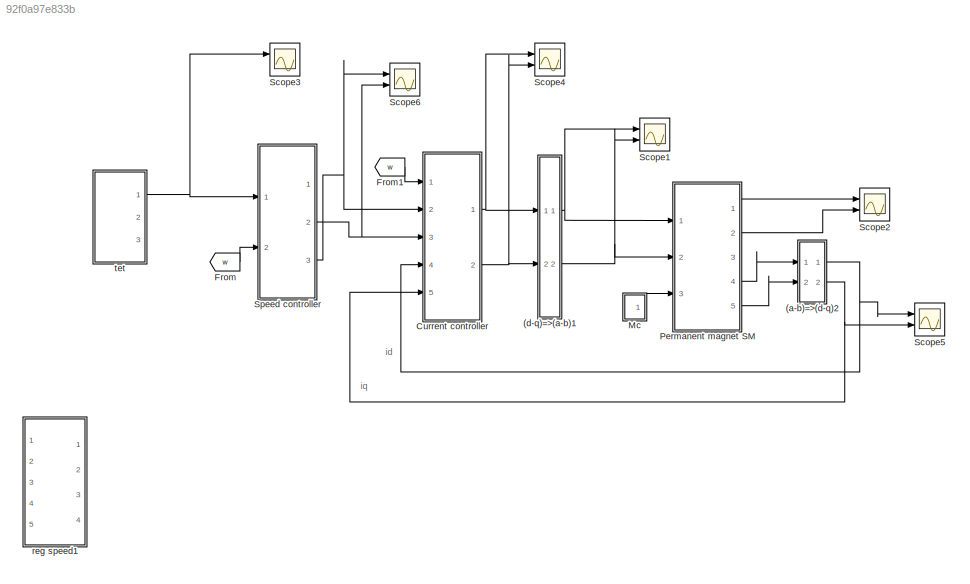
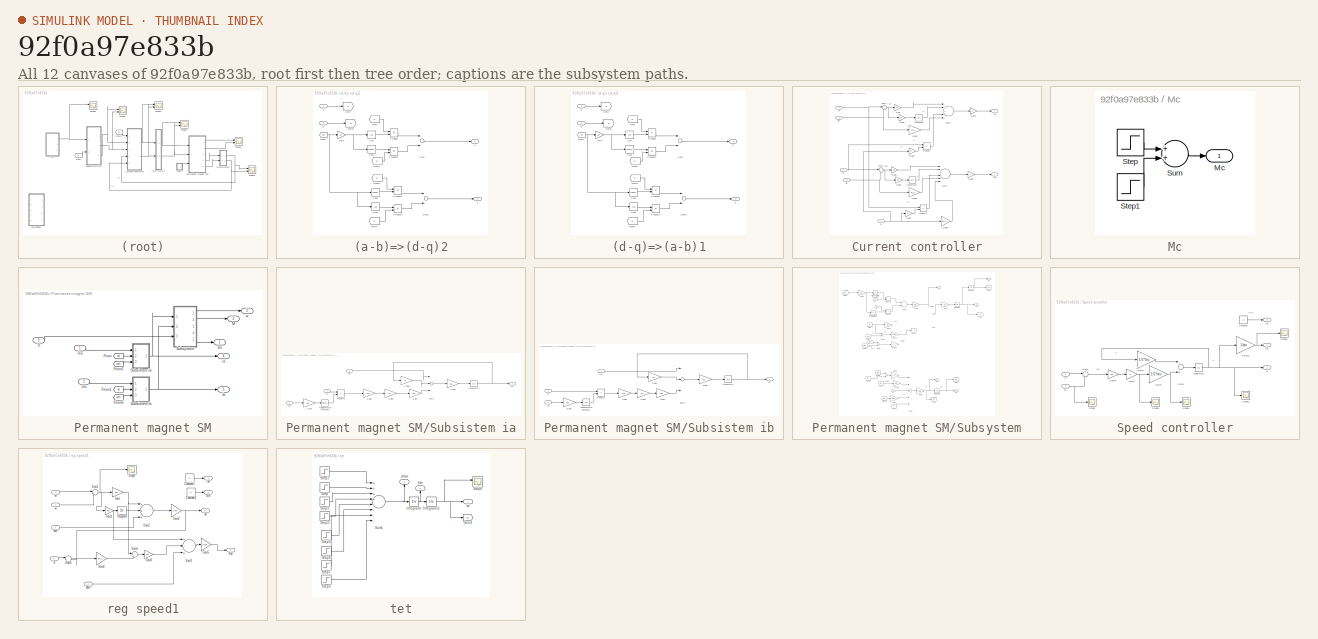
[diagram: thumbnail index - all 12 canvases of the model, root first then tree order]
MODEL slx_92f0a97e833b
KIND model
CONFIG AbsTol = 1e-7
CONFIG FixedStep = auto
CONFIG MaxStep = auto
CONFIG MinStep = auto
CONFIG RelTol = 1e-7
CONFIG SampleTimeConstraint = Unconstrained
CONFIG Solver = ode45
CONFIG SolverMode = Auto
CONFIG SolverName = ode45
CONFIG StartTime = 0.0
CONFIG StopTime = 5
BLOCK [SubSystem] (a-b)=>(d-q)2
  Ports = [2, 2]
  RequestExecContextInheritance = off
  Variant = off
BLOCK [Trigonometry] (a-b)=>(d-q)2/Cos
  Operator = cos
  Ports = [1, 1]
BLOCK [Trigonometry] (a-b)=>(d-q)2/Cos1
  Ports = [1, 1]
BLOCK [Trigonometry] (a-b)=>(d-q)2/Cos2
  Ports = [1, 1]
BLOCK [Trigonometry] (a-b)=>(d-q)2/Cos3
  Operator = cos
  Ports = [1, 1]
BLOCK [From] (a-b)=>(d-q)2/From
  GotoTag = a
BLOCK [From] (a-b)=>(d-q)2/From1
  CloseFcn = tagdialog Close
  GotoTag = tet
  TagVisibility = global
BLOCK [From] (a-b)=>(d-q)2/From2
  GotoTag = b
BLOCK [From] (a-b)=>(d-q)2/From3
  GotoTag = a
BLOCK [From] (a-b)=>(d-q)2/From4
  GotoTag = b
BLOCK [Gain] (a-b)=>(d-q)2/Gain
  Gain = pn
  OutDataTypeStr = Inherit: Inherit via internal rule
  ParamDataTypeStr = Inherit: Inherit via internal rule
  SaturateOnIntegerOverflow = off
BLOCK [Goto] (a-b)=>(d-q)2/Goto
  GotoTag = a
BLOCK [Goto] (a-b)=>(d-q)2/Goto1
  GotoTag = b
BLOCK [Product] (a-b)=>(d-q)2/Product
  InputSameDT = off
  OutDataTypeStr = Inherit: Inherit via internal rule
  Ports = [2, 1]
  RndMeth = Floor
  SaturateOnIntegerOverflow = off
BLOCK [Product] (a-b)=>(d-q)2/Product1
  InputSameDT = off
  OutDataTypeStr = Inherit: Inherit via internal rule
  Ports = [2, 1]
  RndMeth = Floor
  SaturateOnIntegerOverflow = off
BLOCK [Product] (a-b)=>(d-q)2/Product2
  InputSameDT = off
  OutDataTypeStr = Inherit: Inherit via internal rule
  Ports = [2, 1]
  RndMeth = Floor
  SaturateOnIntegerOverflow = off
BLOCK [Product] (a-b)=>(d-q)2/Product3
  InputSameDT = off
  OutDataTypeStr = Inherit: Inherit via internal rule
  Ports = [2, 1]
  RndMeth = Floor
  SaturateOnIntegerOverflow = off
BLOCK [Sum] (a-b)=>(d-q)2/Sum
  InputSameDT = off
  OutDataTypeStr = Inherit: Inherit via internal rule
  Ports = [2, 1]
  SaturateOnIntegerOverflow = off
BLOCK [Sum] (a-b)=>(d-q)2/Sum1
  InputSameDT = off
  Inputs = -+
  OutDataTypeStr = Inherit: Inherit via internal rule
  Ports = [2, 1]
  SaturateOnIntegerOverflow = off
BLOCK [Inport] (a-b)=>(d-q)2/a
  IconDisplay = Port number
BLOCK [Inport] (a-b)=>(d-q)2/b 
  IconDisplay = Port number
  Port = 2
BLOCK [Outport] (a-b)=>(d-q)2/d
  IconDisplay = Port number
BLOCK [Outport] (a-b)=>(d-q)2/q
  IconDisplay = Port number
  Port = 2
BLOCK [SubSystem] (d-q)=>(a-b)1
  Ports = [2, 2]
  RequestExecContextInheritance = off
  Variant = off
BLOCK [Trigonometry] (d-q)=>(a-b)1/Cos
  Operator = cos
  Ports = [1, 1]
BLOCK [Trigonometry] (d-q)=>(a-b)1/Cos1
  Ports = [1, 1]
BLOCK [Trigonometry] (d-q)=>(a-b)1/Cos2
  Ports = [1, 1]
BLOCK [Trigonometry] (d-q)=>(a-b)1/Cos3
  Operator = cos
  Ports = [1, 1]
BLOCK [From] (d-q)=>(a-b)1/From
  GotoTag = d
BLOCK [From] (d-q)=>(a-b)1/From1
  CloseFcn = tagdialog Close
  GotoTag = tet
  TagVisibility = global
BLOCK [From] (d-q)=>(a-b)1/From2
  GotoTag = q
BLOCK [From] (d-q)=>(a-b)1/From3
  GotoTag = d
BLOCK [From] (d-q)=>(a-b)1/From4
  GotoTag = q
BLOCK [Gain] (d-q)=>(a-b)1/Gain
  Gain = pn
  OutDataTypeStr = Inherit: Inherit via internal rule
  ParamDataTypeStr = Inherit: Inherit via internal rule
  SaturateOnIntegerOverflow = off
BLOCK [Goto] (d-q)=>(a-b)1/Goto
  GotoTag = d
BLOCK [Goto] (d-q)=>(a-b)1/Goto1
  GotoTag = q
BLOCK [Product] (d-q)=>(a-b)1/Product
  InputSameDT = off
  OutDataTypeStr = Inherit: Inherit via internal rule
  Ports = [2, 1]
  RndMeth = Floor
  SaturateOnIntegerOverflow = off
BLOCK [Product] (d-q)=>(a-b)1/Product1
  InputSameDT = off
  OutDataTypeStr = Inherit: Inherit via internal rule
  Ports = [2, 1]
  RndMeth = Floor
  SaturateOnIntegerOverflow = off
BLOCK [Product] (d-q)=>(a-b)1/Product2
  InputSameDT = off
  OutDataTypeStr = Inherit: Inherit via internal rule
  Ports = [2, 1]
  RndMeth = Floor
  SaturateOnIntegerOverflow = off
BLOCK [Product] (d-q)=>(a-b)1/Product3
  InputSameDT = off
  OutDataTypeStr = Inherit: Inherit via internal rule
  Ports = [2, 1]
  RndMeth = Floor
  SaturateOnIntegerOverflow = off
BLOCK [Sum] (d-q)=>(a-b)1/Sum
  InputSameDT = off
  Inputs = +-
  OutDataTypeStr = Inherit: Inherit via internal rule
  Ports = [2, 1]
  SaturateOnIntegerOverflow = off
BLOCK [Sum] (d-q)=>(a-b)1/Sum1
  InputSameDT = off
  OutDataTypeStr = Inherit: Inherit via internal rule
  Ports = [2, 1]
  SaturateOnIntegerOverflow = off
BLOCK [Outport] (d-q)=>(a-b)1/a
  IconDisplay = Port number
BLOCK [Outport] (d-q)=>(a-b)1/b
  IconDisplay = Port number
  Port = 2
BLOCK [Inport] (d-q)=>(a-b)1/d
  IconDisplay = Port number
BLOCK [Inport] (d-q)=>(a-b)1/q 
  IconDisplay = Port number
  Port = 2
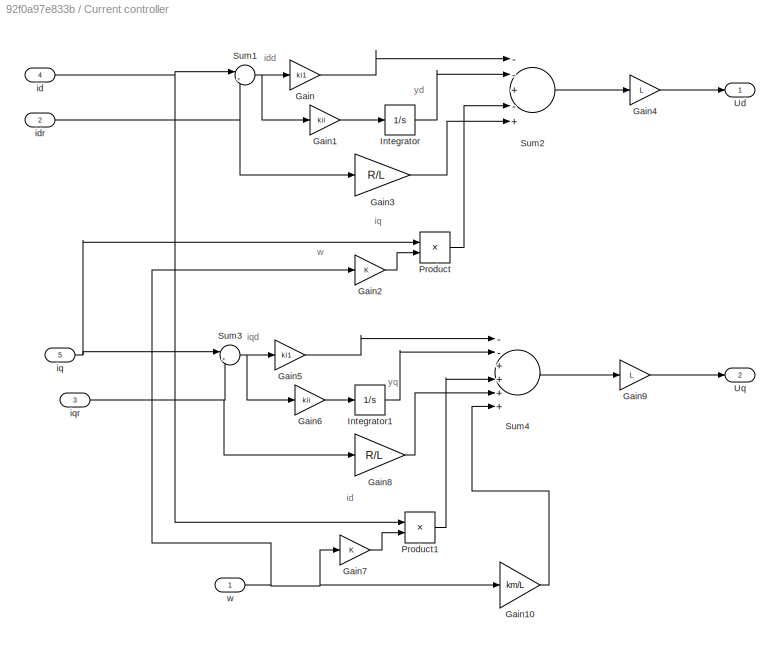
BLOCK [SubSystem] Current controller
  Ports = [5, 2]
  RequestExecContextInheritance = off
  Variant = off
BLOCK [Gain] Current controller/Gain
  Gain = ki1
  OutDataTypeStr = Inherit: Inherit via internal rule
  ParamDataTypeStr = Inherit: Inherit via internal rule
  SaturateOnIntegerOverflow = off
BLOCK [Gain] Current controller/Gain1
  Gain = kii
  OutDataTypeStr = Inherit: Inherit via internal rule
  ParamDataTypeStr = Inherit: Inherit via internal rule
  SaturateOnIntegerOverflow = off
BLOCK [Gain] Current controller/Gain10
  Gain = km/L
  OutDataTypeStr = Inherit: Inherit via internal rule
  ParamDataTypeStr = Inherit: Inherit via internal rule
  SaturateOnIntegerOverflow = off
BLOCK [Gain] Current controller/Gain2
  OutDataTypeStr = Inherit: Inherit via internal rule
  ParamDataTypeStr = Inherit: Inherit via internal rule
  SaturateOnIntegerOverflow = off
BLOCK [Gain] Current controller/Gain3
  Gain = R/L
  OutDataTypeStr = Inherit: Inherit via internal rule
  ParamDataTypeStr = Inherit: Inherit via internal rule
  SaturateOnIntegerOverflow = off
BLOCK [Gain] Current controller/Gain4
  Gain = L
  OutDataTypeStr = Inherit: Inherit via internal rule
  ParamDataTypeStr = Inherit: Inherit via internal rule
  SaturateOnIntegerOverflow = off
BLOCK [Gain] Current controller/Gain5
  Gain = ki1
  OutDataTypeStr = Inherit: Inherit via internal rule
  ParamDataTypeStr = Inherit: Inherit via internal rule
  SaturateOnIntegerOverflow = off
BLOCK [Gain] Current controller/Gain6
  Gain = kii
  OutDataTypeStr = Inherit: Inherit via internal rule
  ParamDataTypeStr = Inherit: Inherit via internal rule
  SaturateOnIntegerOverflow = off
BLOCK [Gain] Current controller/Gain7
  OutDataTypeStr = Inherit: Inherit via internal rule
  ParamDataTypeStr = Inherit: Inherit via internal rule
  SaturateOnIntegerOverflow = off
BLOCK [Gain] Current controller/Gain8
  Gain = R/L
  OutDataTypeStr = Inherit: Inherit via internal rule
  ParamDataTypeStr = Inherit: Inherit via internal rule
  SaturateOnIntegerOverflow = off
BLOCK [Gain] Current controller/Gain9
  Gain = L
  OutDataTypeStr = Inherit: Inherit via internal rule
  ParamDataTypeStr = Inherit: Inherit via internal rule
  SaturateOnIntegerOverflow = off
BLOCK [Integrator] Current controller/Integrator
  Ports = [1, 1]
BLOCK [Integrator] Current controller/Integrator1
  Ports = [1, 1]
BLOCK [Product] Current controller/Product
  InputSameDT = off
  OutDataTypeStr = Inherit: Inherit via internal rule
  Ports = [2, 1]
  RndMeth = Floor
  SaturateOnIntegerOverflow = off
BLOCK [Product] Current controller/Product1
  InputSameDT = off
  OutDataTypeStr = Inherit: Inherit via internal rule
  Ports = [2, 1]
  RndMeth = Floor
  SaturateOnIntegerOverflow = off
BLOCK [Sum] Current controller/Sum1
  IconShape = round
  InputSameDT = off
  Inputs = |+-
  OutDataTypeStr = Inherit: Inherit via internal rule
  Ports = [2, 1]
  SaturateOnIntegerOverflow = off
BLOCK [Sum] Current controller/Sum2
  InputSameDT = off
  Inputs = --+-+
  OutDataTypeStr = Inherit: Inherit via internal rule
  Ports = [5, 1]
  SaturateOnIntegerOverflow = off
BLOCK [Sum] Current controller/Sum3
  IconShape = round
  InputSameDT = off
  Inputs = |+-
  OutDataTypeStr = Inherit: Inherit via internal rule
  Ports = [2, 1]
  SaturateOnIntegerOverflow = off
BLOCK [Sum] Current controller/Sum4
  InputSameDT = off
  Inputs = --++++
  OutDataTypeStr = Inherit: Inherit via internal rule
  Ports = [6, 1]
  SaturateOnIntegerOverflow = off
BLOCK [Outport] Current controller/Ud
  IconDisplay = Port number
BLOCK [Outport] Current controller/Uq
  IconDisplay = Port number
  Port = 2
BLOCK [Inport] Current controller/id
  IconDisplay = Port number
  Port = 4
BLOCK [Inport] Current controller/idr
  IconDisplay = Port number
  Port = 2
BLOCK [Inport] Current controller/iq
  IconDisplay = Port number
  Port = 5
BLOCK [Inport] Current controller/iqr
  IconDisplay = Port number
  Port = 3
BLOCK [Inport] Current controller/w
  IconDisplay = Port number
BLOCK [From] From
  GotoTag = w
  TagVisibility = global
BLOCK [From] From1
  GotoTag = w
  TagVisibility = global
BLOCK [SubSystem] Mc
  Ports = [0, 1]
  RequestExecContextInheritance = off
  Variant = off
BLOCK [Outport] Mc/Mc
  IconDisplay = Port number
BLOCK [Step] Mc/Step
  After = Mc
  Time = te
BLOCK [Step] Mc/Step1
  After = -Mc
  Time = td
BLOCK [Sum] Mc/Sum
  Ports = [2, 1]
BLOCK [SubSystem] Permanent magnet SM
  Ports = [3, 5]
  RequestExecContextInheritance = off
  Variant = off
BLOCK [From] Permanent magnet SM/From
  GotoTag = w
  TagVisibility = global
BLOCK [From] Permanent magnet SM/From1
  GotoTag = w
  TagVisibility = global
BLOCK [From] Permanent magnet SM/From5
  GotoTag = tet
  TagVisibility = global
BLOCK [From] Permanent magnet SM/From6
  GotoTag = tet
  TagVisibility = global
BLOCK [Outport] Permanent magnet SM/M
  IconDisplay = Port number
  Port = 3
BLOCK [SubSystem] Permanent magnet SM/Subsistem ia
  Ports = [3, 1]
  RequestExecContextInheritance = off
  Variant = off
BLOCK [Gain] Permanent magnet SM/Subsistem ia/Gain1
  Gain = pn
BLOCK [Gain] Permanent magnet SM/Subsistem ia/Gain2
  Gain = Lm
BLOCK [Gain] Permanent magnet SM/Subsistem ia/Gain3
  Gain = R
BLOCK [Gain] Permanent magnet SM/Subsistem ia/Gain4
  Gain = pn
BLOCK [Gain] Permanent magnet SM/Subsistem ia/Gain5
  Gain = 1/L
BLOCK [Gain] Permanent magnet SM/Subsistem ia/Gain6
  Gain = iff
BLOCK [Integrator] Permanent magnet SM/Subsistem ia/Integrator1
  Ports = [1, 1]
BLOCK [Product] Permanent magnet SM/Subsistem ia/Product3
  Ports = [2, 1]
BLOCK [Sum] Permanent magnet SM/Subsistem ia/Sum1
  InputSameDT = off
  Inputs = |+-+
  OutDataTypeStr = Inherit: Inherit via internal rule
  Ports = [3, 1]
  SaturateOnIntegerOverflow = off
BLOCK [Trigonometry] Permanent magnet SM/Subsistem ia/Trigonometric Function2
  Ports = [1, 1]
BLOCK [Inport] Permanent magnet SM/Subsistem ia/Ua
  IconDisplay = Port number
BLOCK [Outport] Permanent magnet SM/Subsistem ia/ia
  IconDisplay = Port number
BLOCK [Inport] Permanent magnet SM/Subsistem ia/tet
  IconDisplay = Port number
  Port = 3
BLOCK [Inport] Permanent magnet SM/Subsistem ia/w
  IconDisplay = Port number
  Port = 2
BLOCK [SubSystem] Permanent magnet SM/Subsistem ib
  Ports = [3, 1]
  RequestExecContextInheritance = off
  Variant = off
BLOCK [Gain] Permanent magnet SM/Subsistem ib/Gain1
  Gain = pn
BLOCK [Gain] Permanent magnet SM/Subsistem ib/Gain2
  Gain = Lm
BLOCK [Gain] Permanent magnet SM/Subsistem ib/Gain3
  Gain = R
BLOCK [Gain] Permanent magnet SM/Subsistem ib/Gain4
  Gain = pn
BLOCK [Gain] Permanent magnet SM/Subsistem ib/Gain5
  Gain = 1/L
BLOCK [Gain] Permanent magnet SM/Subsistem ib/Gain6
  Gain = iff
BLOCK [Integrator] Permanent magnet SM/Subsistem ib/Integrator1
  Ports = [1, 1]
BLOCK [Product] Permanent magnet SM/Subsistem ib/Product3
  Ports = [2, 1]
BLOCK [Sum] Permanent magnet SM/Subsistem ib/Sum1
  InputSameDT = off
  Inputs = |+--
  OutDataTypeStr = Inherit: Inherit via internal rule
  Ports = [3, 1]
  SaturateOnIntegerOverflow = off
BLOCK [Trigonometry] Permanent magnet SM/Subsistem ib/Trigonometric Function2
  Operator = cos
  Ports = [1, 1]
BLOCK [Inport] Permanent magnet SM/Subsistem ib/Ub
  IconDisplay = Port number
BLOCK [Outport] Permanent magnet SM/Subsistem ib/ib
  IconDisplay = Port number
BLOCK [Inport] Permanent magnet SM/Subsistem ib/tet
  IconDisplay = Port number
  Port = 3
BLOCK [Inport] Permanent magnet SM/Subsistem ib/w
  IconDisplay = Port number
  Port = 2
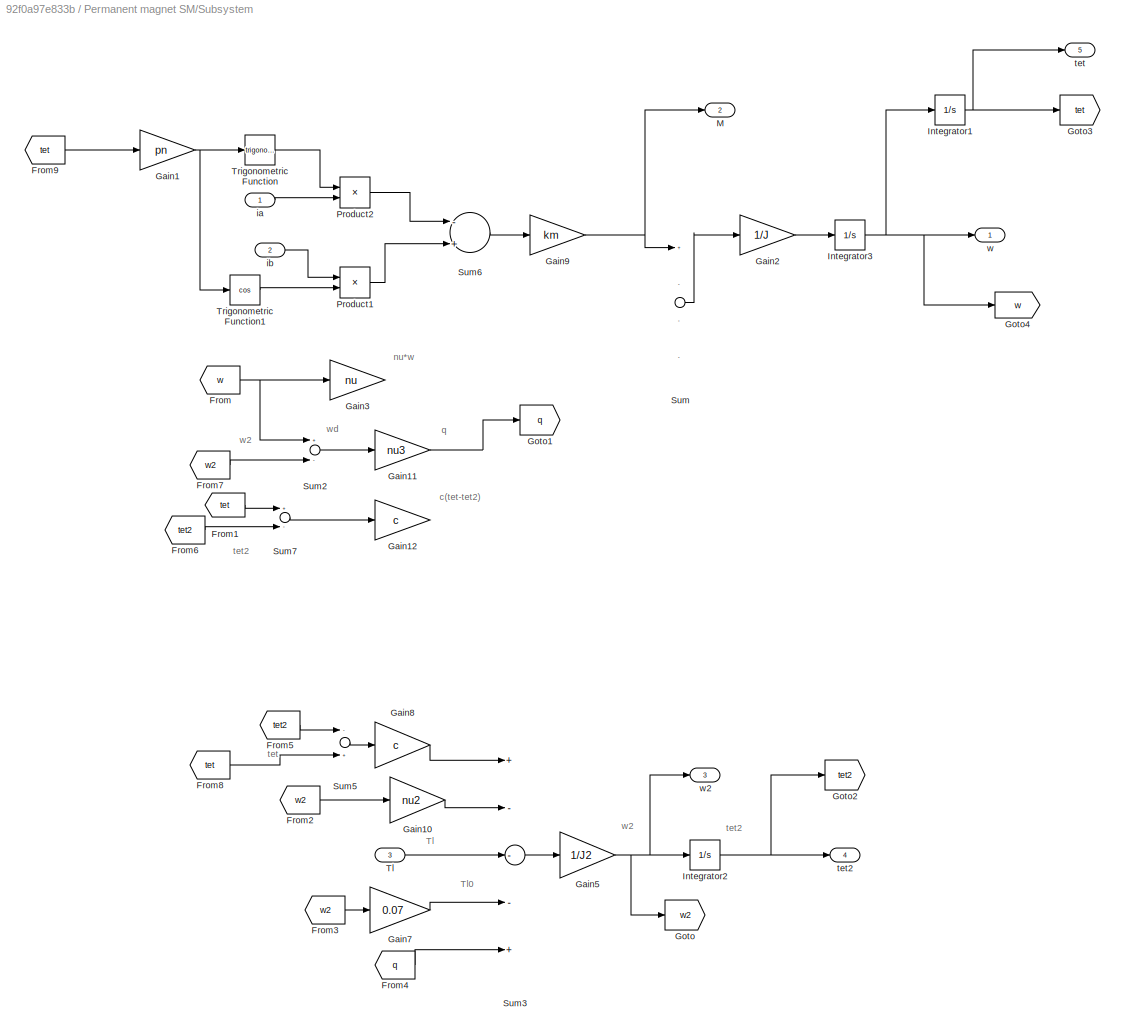
BLOCK [SubSystem] Permanent magnet SM/Subsystem
  Ports = [3, 5]
  RequestExecContextInheritance = off
  Variant = off
BLOCK [From] Permanent magnet SM/Subsystem/From
  GotoTag = w
  TagVisibility = global
BLOCK [From] Permanent magnet SM/Subsystem/From1
  GotoTag = tet
  TagVisibility = global
BLOCK [From] Permanent magnet SM/Subsystem/From2
  GotoTag = w2
BLOCK [From] Permanent magnet SM/Subsystem/From3
  GotoTag = w2
BLOCK [From] Permanent magnet SM/Subsystem/From4
  GotoTag = q
BLOCK [From] Permanent magnet SM/Subsystem/From5
  GotoTag = tet2
BLOCK [From] Permanent magnet SM/Subsystem/From6
  GotoTag = tet2
BLOCK [From] Permanent magnet SM/Subsystem/From7
  GotoTag = w2
BLOCK [From] Permanent magnet SM/Subsystem/From8
  GotoTag = tet
  TagVisibility = global
BLOCK [From] Permanent magnet SM/Subsystem/From9
  GotoTag = tet
  TagVisibility = global
BLOCK [Gain] Permanent magnet SM/Subsystem/Gain1
  Gain = pn
BLOCK [Gain] Permanent magnet SM/Subsystem/Gain10
  Gain = nu2
BLOCK [Gain] Permanent magnet SM/Subsystem/Gain11
  Gain = nu3
BLOCK [Gain] Permanent magnet SM/Subsystem/Gain12
  Gain = c
BLOCK [Gain] Permanent magnet SM/Subsystem/Gain2
  Gain = 1/J
BLOCK [Gain] Permanent magnet SM/Subsystem/Gain3
  Gain = nu
BLOCK [Gain] Permanent magnet SM/Subsystem/Gain5
  Gain = 1/J2
BLOCK [Gain] Permanent magnet SM/Subsystem/Gain7
  Gain = 0.07
BLOCK [Gain] Permanent magnet SM/Subsystem/Gain8
  Gain = c
BLOCK [Gain] Permanent magnet SM/Subsystem/Gain9
  Gain = km
BLOCK [Goto] Permanent magnet SM/Subsystem/Goto
  GotoTag = w2
BLOCK [Goto] Permanent magnet SM/Subsystem/Goto1
  GotoTag = q
BLOCK [Goto] Permanent magnet SM/Subsystem/Goto2
  GotoTag = tet2
BLOCK [Goto] Permanent magnet SM/Subsystem/Goto3
  GotoTag = tet
  TagVisibility = global
BLOCK [Goto] Permanent magnet SM/Subsystem/Goto4
  GotoTag = w
  TagVisibility = global
BLOCK [Integrator] Permanent magnet SM/Subsystem/Integrator1
  Ports = [1, 1]
BLOCK [Integrator] Permanent magnet SM/Subsystem/Integrator2
  Ports = [1, 1]
BLOCK [Integrator] Permanent magnet SM/Subsystem/Integrator3
  Ports = [1, 1]
BLOCK [Outport] Permanent magnet SM/Subsystem/M
  IconDisplay = Port number
  Port = 2
BLOCK [Product] Permanent magnet SM/Subsystem/Product1
  Ports = [2, 1]
BLOCK [Product] Permanent magnet SM/Subsystem/Product2
  Ports = [2, 1]
BLOCK [Sum] Permanent magnet SM/Subsystem/Sum
  InputSameDT = off
  Inputs = +---
  OutDataTypeStr = Inherit: Inherit via internal rule
  Ports = [4, 1]
  SaturateOnIntegerOverflow = off
BLOCK [Sum] Permanent magnet SM/Subsystem/Sum2
  Inputs = +-
  Ports = [2, 1]
BLOCK [Sum] Permanent magnet SM/Subsystem/Sum3
  Inputs = +---+
  Ports = [5, 1]
BLOCK [Sum] Permanent magnet SM/Subsystem/Sum5
  Inputs = -+
  Ports = [2, 1]
BLOCK [Sum] Permanent magnet SM/Subsystem/Sum6
  Inputs = -+
  Ports = [2, 1]
BLOCK [Sum] Permanent magnet SM/Subsystem/Sum7
  Inputs = +-
  Ports = [2, 1]
BLOCK [Inport] Permanent magnet SM/Subsystem/Tl 
  IconDisplay = Port number
  Port = 3
BLOCK [Trigonometry] Permanent magnet SM/Subsystem/Trigonometric Function
  Ports = [1, 1]
BLOCK [Trigonometry] Permanent magnet SM/Subsystem/Trigonometric Function1
  Operator = cos
  Ports = [1, 1]
BLOCK [Inport] Permanent magnet SM/Subsystem/ia
  IconDisplay = Port number
BLOCK [Inport] Permanent magnet SM/Subsystem/ib
  IconDisplay = Port number
  Port = 2
BLOCK [Outport] Permanent magnet SM/Subsystem/tet
  IconDisplay = Port number
  Port = 5
BLOCK [Outport] Permanent magnet SM/Subsystem/tet2
  IconDisplay = Port number
  Port = 4
BLOCK [Outport] Permanent magnet SM/Subsystem/w
  IconDisplay = Port number
BLOCK [Outport] Permanent magnet SM/Subsystem/w2
  IconDisplay = Port number
  Port = 3
BLOCK [Inport] Permanent magnet SM/Tl
  IconDisplay = Port number
  Port = 3
BLOCK [Inport] Permanent magnet SM/Ua
  IconDisplay = Port number
BLOCK [Inport] Permanent magnet SM/Ub
  IconDisplay = Port number
  Port = 2
BLOCK [Outport] Permanent magnet SM/ia
  IconDisplay = Port number
  Port = 4
BLOCK [Outport] Permanent magnet SM/ib
  IconDisplay = Port number
  Port = 5
BLOCK [Outport] Permanent magnet SM/tet
  IconDisplay = Port number
BLOCK [Outport] Permanent magnet SM/w
  IconDisplay = Port number
  Port = 2
BLOCK [Scope] Scope1
  DataFormat = StructureWithTime
  Decimation = 1
  Grid = on
  LimitDataPoints = off
  MaxDataPoints = 5000
  NumInputPorts = 2
  Ports = [2]
  SampleInput = off
  SampleTime = -1
  SaveName = ScopeData3
  SaveToWorkspace = off
  ShowLegends = off
  TickLabels = OneTimeTick
  TimeRange = auto
  YMax = 2418362.07911~5510227.66956
  YMin = -3707390.80003~-8730985.09231
  ZoomMode = on
BLOCK [Scope] Scope2
  DataFormat = StructureWithTime
  Decimation = 1
  Grid = on
  LimitDataPoints = off
  MaxDataPoints = 5000
  NumInputPorts = 2
  Ports = [2]
  SampleInput = off
  SampleTime = -1
  SaveName = ScopeData7
  SaveToWorkspace = off
  ShowLegends = off
  TickLabels = OneTimeTick
  TimeRange = 1.378939277478863
  YMax = 0.92437~25.86397
  YMin = -0.10271~-26.64614
  ZoomMode = on
BLOCK [Scope] Scope3
  DataFormat = StructureWithTime
  Decimation = 1
  Grid = on
  LimitDataPoints = off
  MaxDataPoints = 5000
  NumInputPorts = 2
  Ports = [2]
  SampleInput = off
  SampleTime = -1
  SaveName = ScopeData4
  SaveToWorkspace = off
  ShowLegends = off
  TickLabels = OneTimeTick
  TimeRange = auto
  YMax = 1125.00000~1.00000
  YMin = -125.00000~-1.00000
  ZoomMode = on
BLOCK [Scope] Scope4
  DataFormat = StructureWithTime
  Decimation = 1
  Grid = on
  LimitDataPoints = off
  MaxDataPoints = 5000
  NumInputPorts = 2
  Ports = [2]
  SampleInput = off
  SampleTime = -1
  SaveName = ScopeData1
  SaveToWorkspace = off
  ShowLegends = off
  TickLabels = OneTimeTick
  TimeRange = auto
  YMax = 0.00053~0.12304
  YMin = -0.00475~-0.01367
  ZoomMode = on
BLOCK [Scope] Scope5
  DataFormat = StructureWithTime
  Decimation = 1
  Grid = on
  LimitDataPoints = off
  MaxDataPoints = 5000
  NumInputPorts = 2
  Ports = [2]
  SampleInput = off
  SampleTime = -1
  SaveName = ScopeData6
  SaveToWorkspace = off
  ShowLegends = off
  TickLabels = OneTimeTick
  TimeRange = auto
  YMax = 222018263.88981~277008516.65762
  YMin = -1998163164.12975~-2447722606.88518
  ZoomMode = on
BLOCK [Scope] Scope6
  DataFormat = StructureWithTime
  Decimation = 1
  Grid = on
  LimitDataPoints = off
  MaxDataPoints = 5000
  NumInputPorts = 2
  Ports = [2]
  SampleInput = off
  SampleTime = -1
  SaveName = ScopeData1
  SaveToWorkspace = off
  ShowLegends = off
  TickLabels = OneTimeTick
  TimeRange = auto
  YMax = 1.00000~0.0163
  YMin = -1.00000~-0.00181
  ZoomMode = on
BLOCK [SubSystem] Speed controller
  Ports = [2, 3]
  RequestExecContextInheritance = off
  Variant = off
BLOCK [Constant] Speed controller/Constant
  Value = 0
BLOCK [Gain] Speed controller/Gain10
  Gain = 1/km
  OutDataTypeStr = Inherit: Inherit via internal rule
  ParamDataTypeStr = Inherit: Inherit via internal rule
  SaturateOnIntegerOverflow = off
BLOCK [Gain] Speed controller/Gain6
  Gain = kw
  OutDataTypeStr = Inherit: Inherit via internal rule
  ParamDataTypeStr = Inherit: Inherit via internal rule
  SaturateOnIntegerOverflow = off
BLOCK [Gain] Speed controller/Gain7
  Gain = -1
  OutDataTypeStr = Inherit: Inherit via internal rule
  ParamDataTypeStr = Inherit: Inherit via internal rule
  SaturateOnIntegerOverflow = off
BLOCK [Gain] Speed controller/Gain8
  Gain = 1/2*tau
  OutDataTypeStr = Inherit: Inherit via internal rule
  ParamDataTypeStr = Inherit: Inherit via internal rule
  SaturateOnIntegerOverflow = off
BLOCK [Gain] Speed controller/Gain9
  Gain = 1/2*tau
  OutDataTypeStr = Inherit: Inherit via internal rule
  ParamDataTypeStr = Inherit: Inherit via internal rule
  SaturateOnIntegerOverflow = off
BLOCK [Integrator] Speed controller/Integrator1
  Ports = [1, 1]
BLOCK [Scope] Speed controller/Scope
  DataFormat = StructureWithTime
  Decimation = 1
  Grid = on
  LimitDataPoints = off
  MaxDataPoints = 5000
  NumInputPorts = 1
  Ports = [1]
  SampleInput = off
  SampleTime = -1
  SaveName = ScopeData2
  SaveToWorkspace = off
  ShowLegends = off
  TickLabels = OneTimeTick
  TimeRange = auto
  YMax = 1125.00000
  YMin = -125.00000
  ZoomMode = on
BLOCK [Scope] Speed controller/Scope1
  DataFormat = StructureWithTime
  Decimation = 1
  Grid = on
  LimitDataPoints = off
  MaxDataPoints = 5000
  NumInputPorts = 1
  Ports = [1]
  SampleInput = off
  SampleTime = -1
  SaveName = ScopeData3
  SaveToWorkspace = off
  ShowLegends = off
  TickLabels = OneTimeTick
  TimeRange = auto
  YMax = 0.0022
  YMin = -0.00028
  ZoomMode = on
BLOCK [Scope] Speed controller/Scope2
  DataFormat = StructureWithTime
  Decimation = 1
  Grid = on
  LimitDataPoints = off
  MaxDataPoints = 5000
  NumInputPorts = 1
  Ports = [1]
  SampleInput = off
  SampleTime = -1
  SaveName = ScopeData4
  SaveToWorkspace = off
  ShowLegends = off
  TickLabels = OneTimeTick
  TimeRange = auto
  YMax = 0.00323
  YMin = -0.00036
  ZoomMode = on
BLOCK [Scope] Speed controller/Scope3
  DataFormat = StructureWithTime
  Decimation = 1
  Grid = on
  LimitDataPoints = off
  MaxDataPoints = 5000
  NumInputPorts = 1
  Ports = [1]
  SampleInput = off
  SampleTime = -1
  SaveName = ScopeData5
  SaveToWorkspace = off
  ShowLegends = off
  TickLabels = OneTimeTick
  TimeRange = auto
  YMax = 42.67193
  YMin = 37.82266
  ZoomMode = on
BLOCK [Scope] Speed controller/Scope4
  DataFormat = StructureWithTime
  Decimation = 1
  Grid = on
  LimitDataPoints = off
  MaxDataPoints = 5000
  NumInputPorts = 1
  Ports = [1]
  SampleInput = off
  SampleTime = -1
  SaveName = ScopeData6
  SaveToWorkspace = off
  ShowLegends = off
  TickLabels = OneTimeTick
  TimeRange = auto
  YMax = 0.0163
  YMin = -0.00181
  ZoomMode = on
BLOCK [Sum] Speed controller/Sum5
  IconShape = round
  InputSameDT = off
  Inputs = |+-
  OutDataTypeStr = Inherit: Inherit via internal rule
  Ports = [2, 1]
  SaturateOnIntegerOverflow = off
BLOCK [Sum] Speed controller/Sum6
  InputSameDT = off
  Inputs = -+
  OutDataTypeStr = Inherit: Inherit via internal rule
  Ports = [2, 1]
  SaturateOnIntegerOverflow = off
BLOCK [Outport] Speed controller/Tr
  IconDisplay = Port number
BLOCK [Outport] Speed controller/idr
  IconDisplay = Port number
  Port = 3
BLOCK [Outport] Speed controller/iqr 
  IconDisplay = Port number
  Port = 2
BLOCK [Inport] Speed controller/w 
  IconDisplay = Port number
  Port = 2
BLOCK [Inport] Speed controller/wr
  IconDisplay = Port number
BLOCK [SubSystem] reg speed1
  Ports = [5, 4]
  RequestExecContextInheritance = off
  Variant = off
BLOCK [Constant] reg speed1/Constant1
  Value = 0
BLOCK [Constant] reg speed1/Constant2
  Value = 0
BLOCK [Gain] reg speed1/Gain
  Gain = kw
  OutDataTypeStr = Inherit: Inherit via internal rule
  ParamDataTypeStr = Inherit: Inherit via internal rule
  SaturateOnIntegerOverflow = off
BLOCK [Gain] reg speed1/Gain1
  Gain = kwi
  OutDataTypeStr = Inherit: Inherit via internal rule
  ParamDataTypeStr = Inherit: Inherit via internal rule
  SaturateOnIntegerOverflow = off
BLOCK [Gain] reg speed1/Gain2
  Gain = J/km
  OutDataTypeStr = Inherit: Inherit via internal rule
  ParamDataTypeStr = Inherit: Inherit via internal rule
  SaturateOnIntegerOverflow = off
BLOCK [Gain] reg speed1/Gain3
  Gain = kw
  OutDataTypeStr = Inherit: Inherit via internal rule
  ParamDataTypeStr = Inherit: Inherit via internal rule
  SaturateOnIntegerOverflow = off
BLOCK [Gain] reg speed1/Gain4
  Gain = km/J
  OutDataTypeStr = Inherit: Inherit via internal rule
  ParamDataTypeStr = Inherit: Inherit via internal rule
  SaturateOnIntegerOverflow = off
BLOCK [Gain] reg speed1/Gain5
  Gain = J/km
  OutDataTypeStr = Inherit: Inherit via internal rule
  ParamDataTypeStr = Inherit: Inherit via internal rule
  SaturateOnIntegerOverflow = off
BLOCK [Integrator] reg speed1/Integrator
  Ports = [1, 1]
BLOCK [Scope] reg speed1/Scope
  DataFormat = StructureWithTime
  Decimation = 1
  Grid = on
  LimitDataPoints = off
  MaxDataPoints = 5000
  NumInputPorts = 1
  Ports = [1]
  SampleInput = off
  SampleTime = -1
  SaveName = ScopeData1
  SaveToWorkspace = off
  ShowLegends = off
  TickLabels = OneTimeTick
  TimeRange = auto
  YMax = 10
  YMin = -10
  ZoomMode = on
BLOCK [Sum] reg speed1/Sum1
  IconShape = round
  InputSameDT = off
  Inputs = |+-
  OutDataTypeStr = Inherit: Inherit via internal rule
  Ports = [2, 1]
  SaturateOnIntegerOverflow = off
BLOCK [Sum] reg speed1/Sum2
  InputSameDT = off
  Inputs = +++
  OutDataTypeStr = Inherit: Inherit via internal rule
  Ports = [3, 1]
  SaturateOnIntegerOverflow = off
BLOCK [Sum] reg speed1/Sum3
  InputSameDT = off
  Inputs = +-+
  OutDataTypeStr = Inherit: Inherit via internal rule
  Ports = [3, 1]
  SaturateOnIntegerOverflow = off
BLOCK [Sum] reg speed1/Sum4
  IconShape = round
  InputSameDT = off
  Inputs = |++
  OutDataTypeStr = Inherit: Inherit via internal rule
  Ports = [2, 1]
  SaturateOnIntegerOverflow = off
BLOCK [Sum] reg speed1/Sum5
  IconShape = round
  InputSameDT = off
  Inputs = |+-
  OutDataTypeStr = Inherit: Inherit via internal rule
  Ports = [2, 1]
  SaturateOnIntegerOverflow = off
BLOCK [Inport] reg speed1/ddwr
  IconDisplay = Port number
  Port = 4
BLOCK [Outport] reg speed1/didr
  IconDisplay = Port number
  Port = 2
BLOCK [Outport] reg speed1/diqr
  IconDisplay = Port number
  Port = 4
BLOCK [Inport] reg speed1/dwr
  IconDisplay = Port number
  Port = 3
BLOCK [Outport] reg speed1/idr
  IconDisplay = Port number
BLOCK [Inport] reg speed1/iq
  IconDisplay = Port number
  Port = 5
BLOCK [Outport] reg speed1/iqr
  IconDisplay = Port number
  Port = 3
BLOCK [Inport] reg speed1/w
  IconDisplay = Port number
BLOCK [Inport] reg speed1/wr
  IconDisplay = Port number
  Port = 2
BLOCK [SubSystem] tet
  Ports = [0, 3]
  RequestExecContextInheritance = off
  Variant = off
BLOCK [Goto] tet/Goto4
  GotoTag = wr
  TagVisibility = global
BLOCK [Integrator] tet/Integrator
  Ports = [1, 1]
BLOCK [Integrator] tet/Integrator1
  Ports = [1, 1]
BLOCK [Scope] tet/Scope
  DataFormat = StructureWithTime
  Decimation = 1
  Grid = on
  LimitDataPoints = off
  MaxDataPoints = 5000
  NumInputPorts = 2
  Ports = [2]
  SampleInput = off
  SampleTime = -1
  SaveName = ScopeData1
  SaveToWorkspace = off
  ShowLegends = off
  TickLabels = OneTimeTick
  TimeRange = auto
  YMax = 5~5
  YMin = -5~-5
  ZoomMode = on
BLOCK [Step] tet/Step
  After = -wrmax/(ka*ta*ka*ta+ka*ta*(ta-2*ka*ta))
  Time = tex+ta*ka
BLOCK [Step] tet/Step1
  After = wrmax/(ka*ta*ka*ta+ka*ta*(ta-2*ka*ta))
  Time = tex
BLOCK [Step] tet/Step2
  After = wrmax/(ka*ta*ka*ta+ka*ta*(ta-2*ka*ta))
  Time = tex+ta
BLOCK [Step] tet/Step3
  After = -wrmax/(ka*ta*ka*ta+ka*ta*(ta-2*ka*ta))
  Time = tex+ta*ka+(ta-2*ta*ka)
BLOCK [Step] tet/Step4
  After = -wrmax/(ka*ta*ka*ta+ka*ta*(ta-2*ka*ta))
  Time = tex+ta+tcon+ta*ka
BLOCK [Step] tet/Step5
  After = wrmax/(ka*ta*ka*ta+ka*ta*(ta-2*ka*ta))
  Time = tex+ta+tcon
BLOCK [Step] tet/Step6
  After = wrmax/(ka*ta*ka*ta+ka*ta*(ta-2*ka*ta))
  Time = tex+ta+tcon+ta
BLOCK [Step] tet/Step7
  After = -wrmax/(ka*ta*ka*ta+ka*ta*(ta-2*ka*ta))
  Time = tex+ta+tcon+ta*ka+(ta-2*ta*ka)
BLOCK [Sum] tet/Sum1
  Inputs = ++++----
  Ports = [8, 1]
BLOCK [Outport] tet/ddwr
  IconDisplay = Port number
  InitialOutput = 0
  Port = 3
BLOCK [Outport] tet/dwr
  IconDisplay = Port number
  InitialOutput = 0
  Port = 2
BLOCK [Outport] tet/wr
  IconDisplay = Port number
  InitialOutput = 0
ANNOTATION (root): id
ANNOTATION (root): iq
ANNOTATION Current controller: id
ANNOTATION Current controller: idd
ANNOTATION Current controller: iq
ANNOTATION Current controller: iqd
ANNOTATION Current controller: w
ANNOTATION Current controller: yd
ANNOTATION Current controller: yq
ANNOTATION Permanent magnet SM/Subsystem: Tl
ANNOTATION Permanent magnet SM/Subsystem: Tl0
ANNOTATION Permanent magnet SM/Subsystem: c(tet-tet2)
ANNOTATION Permanent magnet SM/Subsystem: nu*w
ANNOTATION Permanent magnet SM/Subsystem: q
ANNOTATION Permanent magnet SM/Subsystem: tet
ANNOTATION Permanent magnet SM/Subsystem: tet2
ANNOTATION Permanent magnet SM/Subsystem: w2
ANNOTATION Permanent magnet SM/Subsystem: wd
ANNOTATION Speed controller: Tr1
ANNOTATION Speed controller: Tr
ANNOTATION Speed controller: idr=0
ANNOTATION Speed controller: ew
LINE (a-b)=>(d-q)2/Cos1:1 -> (a-b)=>(d-q)2/Product1:1
LINE (a-b)=>(d-q)2/Cos2:1 -> (a-b)=>(d-q)2/Product2:2
LINE (a-b)=>(d-q)2/Cos3:1 -> (a-b)=>(d-q)2/Product3:1
LINE (a-b)=>(d-q)2/Cos:1 -> (a-b)=>(d-q)2/Product:2
NET (a-b)=>(d-q)2/From1:1 -> (a-b)=>(d-q)2/Cos2:1, (a-b)=>(d-q)2/Cos3:1, (a-b)=>(d-q)2/Gain:1
LINE (a-b)=>(d-q)2/From2:1 -> (a-b)=>(d-q)2/Product1:2
LINE (a-b)=>(d-q)2/From3:1 -> (a-b)=>(d-q)2/Product2:1
LINE (a-b)=>(d-q)2/From4:1 -> (a-b)=>(d-q)2/Product3:2
LINE (a-b)=>(d-q)2/From:1 -> (a-b)=>(d-q)2/Product:1
NET (a-b)=>(d-q)2/Gain:1 -> (a-b)=>(d-q)2/Cos1:1, (a-b)=>(d-q)2/Cos:1
LINE (a-b)=>(d-q)2/Product1:1 -> (a-b)=>(d-q)2/Sum:2
LINE (a-b)=>(d-q)2/Product2:1 -> (a-b)=>(d-q)2/Sum1:1
LINE (a-b)=>(d-q)2/Product3:1 -> (a-b)=>(d-q)2/Sum1:2
LINE (a-b)=>(d-q)2/Product:1 -> (a-b)=>(d-q)2/Sum:1
LINE (a-b)=>(d-q)2/Sum1:1 -> (a-b)=>(d-q)2/q:1
LINE (a-b)=>(d-q)2/Sum:1 -> (a-b)=>(d-q)2/d:1
LINE (a-b)=>(d-q)2/a:1 -> (a-b)=>(d-q)2/Goto:1
LINE (a-b)=>(d-q)2/b :1 -> (a-b)=>(d-q)2/Goto1:1
NET (a-b)=>(d-q)2:1 -> Current controller:4, Scope5:1
NET (a-b)=>(d-q)2:2 -> Current controller:5, Scope5:2
LINE (d-q)=>(a-b)1/Cos1:1 -> (d-q)=>(a-b)1/Product1:1
LINE (d-q)=>(a-b)1/Cos2:1 -> (d-q)=>(a-b)1/Product2:2
LINE (d-q)=>(a-b)1/Cos3:1 -> (d-q)=>(a-b)1/Product3:1
LINE (d-q)=>(a-b)1/Cos:1 -> (d-q)=>(a-b)1/Product:2
NET (d-q)=>(a-b)1/From1:1 -> (d-q)=>(a-b)1/Cos2:1, (d-q)=>(a-b)1/Cos3:1, (d-q)=>(a-b)1/Gain:1
LINE (d-q)=>(a-b)1/From2:1 -> (d-q)=>(a-b)1/Product1:2
LINE (d-q)=>(a-b)1/From3:1 -> (d-q)=>(a-b)1/Product2:1
LINE (d-q)=>(a-b)1/From4:1 -> (d-q)=>(a-b)1/Product3:2
LINE (d-q)=>(a-b)1/From:1 -> (d-q)=>(a-b)1/Product:1
NET (d-q)=>(a-b)1/Gain:1 -> (d-q)=>(a-b)1/Cos1:1, (d-q)=>(a-b)1/Cos:1
LINE (d-q)=>(a-b)1/Product1:1 -> (d-q)=>(a-b)1/Sum:2
LINE (d-q)=>(a-b)1/Product2:1 -> (d-q)=>(a-b)1/Sum1:1
LINE (d-q)=>(a-b)1/Product3:1 -> (d-q)=>(a-b)1/Sum1:2
LINE (d-q)=>(a-b)1/Product:1 -> (d-q)=>(a-b)1/Sum:1
LINE (d-q)=>(a-b)1/Sum1:1 -> (d-q)=>(a-b)1/b:1
LINE (d-q)=>(a-b)1/Sum:1 -> (d-q)=>(a-b)1/a:1
LINE (d-q)=>(a-b)1/d:1 -> (d-q)=>(a-b)1/Goto:1
LINE (d-q)=>(a-b)1/q :1 -> (d-q)=>(a-b)1/Goto1:1
NET (d-q)=>(a-b)1:1 -> Permanent magnet SM:1, Scope1:1
NET (d-q)=>(a-b)1:2 -> Permanent magnet SM:2, Scope1:2
LINE Current controller/Gain10:1 -> Current controller/Sum4:6
LINE Current controller/Gain1:1 -> Current controller/Integrator:1
LINE Current controller/Gain2:1 -> Current controller/Product:2
LINE Current controller/Gain3:1 -> Current controller/Sum2:5
LINE Current controller/Gain4:1 -> Current controller/Ud:1
LINE Current controller/Gain5:1 -> Current controller/Sum4:1
LINE Current controller/Gain6:1 -> Current controller/Integrator1:1
LINE Current controller/Gain7:1 -> Current controller/Product1:2
LINE Current controller/Gain8:1 -> Current controller/Sum4:5
LINE Current controller/Gain9:1 -> Current controller/Uq:1
LINE Current controller/Gain:1 -> Current controller/Sum2:1
LINE Current controller/Integrator1:1 -> Current controller/Sum4:2
LINE Current controller/Integrator:1 -> Current controller/Sum2:2
LINE Current controller/Product1:1 -> Current controller/Sum4:4
LINE Current controller/Product:1 -> Current controller/Sum2:4
NET Current controller/Sum1:1 -> Current controller/Gain1:1, Current controller/Gain:1
LINE Current controller/Sum2:1 -> Current controller/Gain4:1
NET Current controller/Sum3:1 -> Current controller/Gain5:1, Current controller/Gain6:1
LINE Current controller/Sum4:1 -> Current controller/Gain9:1
NET Current controller/id:1 -> Current controller/Product1:1, Current controller/Sum1:1
NET Current controller/idr:1 -> Current controller/Gain3:1, Current controller/Sum1:2
NET Current controller/iq:1 -> Current controller/Product:1, Current controller/Sum3:1
NET Current controller/iqr:1 -> Current controller/Gain8:1, Current controller/Sum3:2
NET Current controller/w:1 -> Current controller/Gain10:1, Current controller/Gain2:1, Current controller/Gain7:1
NET Current controller:1 -> (d-q)=>(a-b)1:1, Scope4:1
NET Current controller:2 -> (d-q)=>(a-b)1:2, Scope4:2
LINE From1:1 -> Current controller:1
LINE From:1 -> Speed controller:2
LINE Mc/Step1:1 -> Mc/Sum:2
LINE Mc/Step:1 -> Mc/Sum:1
LINE Mc/Sum:1 -> Mc/Mc:1
LINE Mc:1 -> Permanent magnet SM:3
LINE Permanent magnet SM/From1:1 -> Permanent magnet SM/Subsistem ib:2
LINE Permanent magnet SM/From5:1 -> Permanent magnet SM/Subsistem ia:3
LINE Permanent magnet SM/From6:1 -> Permanent magnet SM/Subsistem ib:3
LINE Permanent magnet SM/From:1 -> Permanent magnet SM/Subsistem ia:2
LINE Permanent magnet SM/Subsistem ia/Gain1:1 -> Permanent magnet SM/Subsistem ia/Trigonometric Function2:1
LINE Permanent magnet SM/Subsistem ia/Gain2:1 -> Permanent magnet SM/Subsistem ia/Gain6:1
LINE Permanent magnet SM/Subsistem ia/Gain3:1 -> Permanent magnet SM/Subsistem ia/Sum1:2
LINE Permanent magnet SM/Subsistem ia/Gain4:1 -> Permanent magnet SM/Subsistem ia/Sum1:3
LINE Permanent magnet SM/Subsistem ia/Gain5:1 -> Permanent magnet SM/Subsistem ia/Integrator1:1
LINE Permanent magnet SM/Subsistem ia/Gain6:1 -> Permanent magnet SM/Subsistem ia/Gain4:1
NET Permanent magnet SM/Subsistem ia/Integrator1:1 -> Permanent magnet SM/Subsistem ia/Gain3:1, Permanent magnet SM/Subsistem ia/ia:1
LINE Permanent magnet SM/Subsistem ia/Product3:1 -> Permanent magnet SM/Subsistem ia/Gain2:1
LINE Permanent magnet SM/Subsistem ia/Sum1:1 -> Permanent magnet SM/Subsistem ia/Gain5:1
LINE Permanent magnet SM/Subsistem ia/Trigonometric Function2:1 -> Permanent magnet SM/Subsistem ia/Product3:2
LINE Permanent magnet SM/Subsistem ia/Ua:1 -> Permanent magnet SM/Subsistem ia/Sum1:1
LINE Permanent magnet SM/Subsistem ia/tet:1 -> Permanent magnet SM/Subsistem ia/Gain1:1
LINE Permanent magnet SM/Subsistem ia/w:1 -> Permanent magnet SM/Subsistem ia/Product3:1
NET Permanent magnet SM/Subsistem ia:1 -> Permanent magnet SM/Subsystem:1, Permanent magnet SM/ia:1
LINE Permanent magnet SM/Subsistem ib/Gain1:1 -> Permanent magnet SM/Subsistem ib/Trigonometric Function2:1
LINE Permanent magnet SM/Subsistem ib/Gain2:1 -> Permanent magnet SM/Subsistem ib/Gain6:1
LINE Permanent magnet SM/Subsistem ib/Gain3:1 -> Permanent magnet SM/Subsistem ib/Sum1:2
LINE Permanent magnet SM/Subsistem ib/Gain4:1 -> Permanent magnet SM/Subsistem ib/Sum1:3
LINE Permanent magnet SM/Subsistem ib/Gain5:1 -> Permanent magnet SM/Subsistem ib/Integrator1:1
LINE Permanent magnet SM/Subsistem ib/Gain6:1 -> Permanent magnet SM/Subsistem ib/Gain4:1
NET Permanent magnet SM/Subsistem ib/Integrator1:1 -> Permanent magnet SM/Subsistem ib/Gain3:1, Permanent magnet SM/Subsistem ib/ib:1
LINE Permanent magnet SM/Subsistem ib/Product3:1 -> Permanent magnet SM/Subsistem ib/Gain2:1
LINE Permanent magnet SM/Subsistem ib/Sum1:1 -> Permanent magnet SM/Subsistem ib/Gain5:1
LINE Permanent magnet SM/Subsistem ib/Trigonometric Function2:1 -> Permanent magnet SM/Subsistem ib/Product3:2
LINE Permanent magnet SM/Subsistem ib/Ub:1 -> Permanent magnet SM/Subsistem ib/Sum1:1
LINE Permanent magnet SM/Subsistem ib/tet:1 -> Permanent magnet SM/Subsistem ib/Gain1:1
LINE Permanent magnet SM/Subsistem ib/w:1 -> Permanent magnet SM/Subsistem ib/Product3:1
NET Permanent magnet SM/Subsistem ib:1 -> Permanent magnet SM/Subsystem:2, Permanent magnet SM/ib:1
LINE Permanent magnet SM/Subsystem/From1:1 -> Permanent magnet SM/Subsystem/Sum7:1
LINE Permanent magnet SM/Subsystem/From2:1 -> Permanent magnet SM/Subsystem/Gain10:1
LINE Permanent magnet SM/Subsystem/From3:1 -> Permanent magnet SM/Subsystem/Gain7:1
LINE Permanent magnet SM/Subsystem/From4:1 -> Permanent magnet SM/Subsystem/Sum3:5
LINE Permanent magnet SM/Subsystem/From5:1 -> Permanent magnet SM/Subsystem/Sum5:1
LINE Permanent magnet SM/Subsystem/From6:1 -> Permanent magnet SM/Subsystem/Sum7:2
LINE Permanent magnet SM/Subsystem/From7:1 -> Permanent magnet SM/Subsystem/Sum2:2
LINE Permanent magnet SM/Subsystem/From8:1 -> Permanent magnet SM/Subsystem/Sum5:2
LINE Permanent magnet SM/Subsystem/From9:1 -> Permanent magnet SM/Subsystem/Gain1:1
NET Permanent magnet SM/Subsystem/From:1 -> Permanent magnet SM/Subsystem/Gain3:1, Permanent magnet SM/Subsystem/Sum2:1
LINE Permanent magnet SM/Subsystem/Gain10:1 -> Permanent magnet SM/Subsystem/Sum3:2
LINE Permanent magnet SM/Subsystem/Gain11:1 -> Permanent magnet SM/Subsystem/Goto1:1
NET Permanent magnet SM/Subsystem/Gain1:1 -> Permanent magnet SM/Subsystem/Trigonometric Function1:1, Permanent magnet SM/Subsystem/Trigonometric Function:1
LINE Permanent magnet SM/Subsystem/Gain2:1 -> Permanent magnet SM/Subsystem/Integrator3:1
NET Permanent magnet SM/Subsystem/Gain5:1 -> Permanent magnet SM/Subsystem/Goto:1, Permanent magnet SM/Subsystem/Integrator2:1, Permanent magnet SM/Subsystem/w2:1
LINE Permanent magnet SM/Subsystem/Gain7:1 -> Permanent magnet SM/Subsystem/Sum3:4
LINE Permanent magnet SM/Subsystem/Gain8:1 -> Permanent magnet SM/Subsystem/Sum3:1
NET Permanent magnet SM/Subsystem/Gain9:1 -> Permanent magnet SM/Subsystem/M:1, Permanent magnet SM/Subsystem/Sum:1
NET Permanent magnet SM/Subsystem/Integrator1:1 -> Permanent magnet SM/Subsystem/Goto3:1, Permanent magnet SM/Subsystem/tet:1
NET Permanent magnet SM/Subsystem/Integrator2:1 -> Permanent magnet SM/Subsystem/Goto2:1, Permanent magnet SM/Subsystem/tet2:1
NET Permanent magnet SM/Subsystem/Integrator3:1 -> Permanent magnet SM/Subsystem/Goto4:1, Permanent magnet SM/Subsystem/Integrator1:1, Permanent magnet SM/Subsystem/w:1
LINE Permanent magnet SM/Subsystem/Product1:1 -> Permanent magnet SM/Subsystem/Sum6:2
LINE Permanent magnet SM/Subsystem/Product2:1 -> Permanent magnet SM/Subsystem/Sum6:1
LINE Permanent magnet SM/Subsystem/Sum2:1 -> Permanent magnet SM/Subsystem/Gain11:1
LINE Permanent magnet SM/Subsystem/Sum3:1 -> Permanent magnet SM/Subsystem/Gain5:1
LINE Permanent magnet SM/Subsystem/Sum5:1 -> Permanent magnet SM/Subsystem/Gain8:1
LINE Permanent magnet SM/Subsystem/Sum6:1 -> Permanent magnet SM/Subsystem/Gain9:1
LINE Permanent magnet SM/Subsystem/Sum7:1 -> Permanent magnet SM/Subsystem/Gain12:1
LINE Permanent magnet SM/Subsystem/Sum:1 -> Permanent magnet SM/Subsystem/Gain2:1
LINE Permanent magnet SM/Subsystem/Tl :1 -> Permanent magnet SM/Subsystem/Sum3:3
LINE Permanent magnet SM/Subsystem/Trigonometric Function1:1 -> Permanent magnet SM/Subsystem/Product1:2
LINE Permanent magnet SM/Subsystem/Trigonometric Function:1 -> Permanent magnet SM/Subsystem/Product2:1
LINE Permanent magnet SM/Subsystem/ia:1 -> Permanent magnet SM/Subsystem/Product2:2
LINE Permanent magnet SM/Subsystem/ib:1 -> Permanent magnet SM/Subsystem/Product1:1
LINE Permanent magnet SM/Subsystem:1 -> Permanent magnet SM/w:1
LINE Permanent magnet SM/Subsystem:2 -> Permanent magnet SM/M:1
LINE Permanent magnet SM/Subsystem:5 -> Permanent magnet SM/tet:1
LINE Permanent magnet SM/Tl:1 -> Permanent magnet SM/Subsystem:3
LINE Permanent magnet SM/Ua:1 -> Permanent magnet SM/Subsistem ia:1
LINE Permanent magnet SM/Ub:1 -> Permanent magnet SM/Subsistem ib:1
LINE Permanent magnet SM:1 -> Scope2:1
LINE Permanent magnet SM:2 -> Scope2:2
LINE Permanent magnet SM:4 -> (a-b)=>(d-q)2:1
LINE Permanent magnet SM:5 -> (a-b)=>(d-q)2:2
LINE Speed controller/Constant:1 -> Speed controller/idr:1
NET Speed controller/Gain10:1 -> Speed controller/Scope4:1, Speed controller/iqr :1
LINE Speed controller/Gain6:1 -> Speed controller/Gain7:1
NET Speed controller/Gain7:1 -> Speed controller/Gain9:1, Speed controller/Scope3:1
LINE Speed controller/Gain8:1 -> Speed controller/Sum6:1
NET Speed controller/Gain9:1 -> Speed controller/Scope1:1, Speed controller/Sum6:2
NET Speed controller/Integrator1:1 -> Speed controller/Gain10:1, Speed controller/Gain8:1, Speed controller/Scope2:1, Speed controller/Tr:1
LINE Speed controller/Sum5:1 -> Speed controller/Gain6:1
LINE Speed controller/Sum6:1 -> Speed controller/Integrator1:1
LINE Speed controller/w :1 -> Speed controller/Sum5:1
NET Speed controller/wr:1 -> Speed controller/Scope:1, Speed controller/Sum5:2
NET Speed controller:2 -> Current controller:3, Scope6:2
NET Speed controller:3 -> Current controller:2, Scope6:1
LINE reg speed1/Constant1:1 -> reg speed1/idr:1
LINE reg speed1/Constant2:1 -> reg speed1/didr:1
NET reg speed1/Gain1:1 -> reg speed1/Integrator:1, reg speed1/Sum3:1
NET reg speed1/Gain2:1 -> reg speed1/Sum5:2, reg speed1/iqr:1
LINE reg speed1/Gain3:1 -> reg speed1/Sum3:2
LINE reg speed1/Gain4:1 -> reg speed1/Sum4:2
LINE reg speed1/Gain5:1 -> reg speed1/diqr:1
NET reg speed1/Gain:1 -> reg speed1/Sum2:1, reg speed1/Sum4:1
LINE reg speed1/Integrator:1 -> reg speed1/Sum2:2
NET reg speed1/Sum1:1 -> reg speed1/Gain1:1, reg speed1/Gain:1, reg speed1/Scope:1
LINE reg speed1/Sum2:1 -> reg speed1/Gain2:1
LINE reg speed1/Sum3:1 -> reg speed1/Gain5:1
LINE reg speed1/Sum4:1 -> reg speed1/Gain3:1
LINE reg speed1/Sum5:1 -> reg speed1/Gain4:1
LINE reg speed1/ddwr:1 -> reg speed1/Sum3:3
LINE reg speed1/dwr:1 -> reg speed1/Sum2:3
LINE reg speed1/iq:1 -> reg speed1/Sum5:1
LINE reg speed1/w:1 -> reg speed1/Sum1:2
LINE reg speed1/wr:1 -> reg speed1/Sum1:1
NET tet/Integrator1:1 -> tet/Goto4:1, tet/Scope:1, tet/wr:1
NET tet/Integrator:1 -> tet/Integrator1:1, tet/dwr:1
LINE tet/Step1:1 -> tet/Sum1:1
LINE tet/Step2:1 -> tet/Sum1:4
LINE tet/Step3:1 -> tet/Sum1:3
LINE tet/Step4:1 -> tet/Sum1:6
LINE tet/Step5:1 -> tet/Sum1:5
LINE tet/Step6:1 -> tet/Sum1:8
LINE tet/Step7:1 -> tet/Sum1:7
LINE tet/Step:1 -> tet/Sum1:2
NET tet/Sum1:1 -> tet/Integrator:1, tet/ddwr:1
NET tet:1 -> Scope3:1, Speed controller:1
note: NET lines group one-source signal fan-out (src -> all destinations, sorted); 1:1 wires keep LINE
